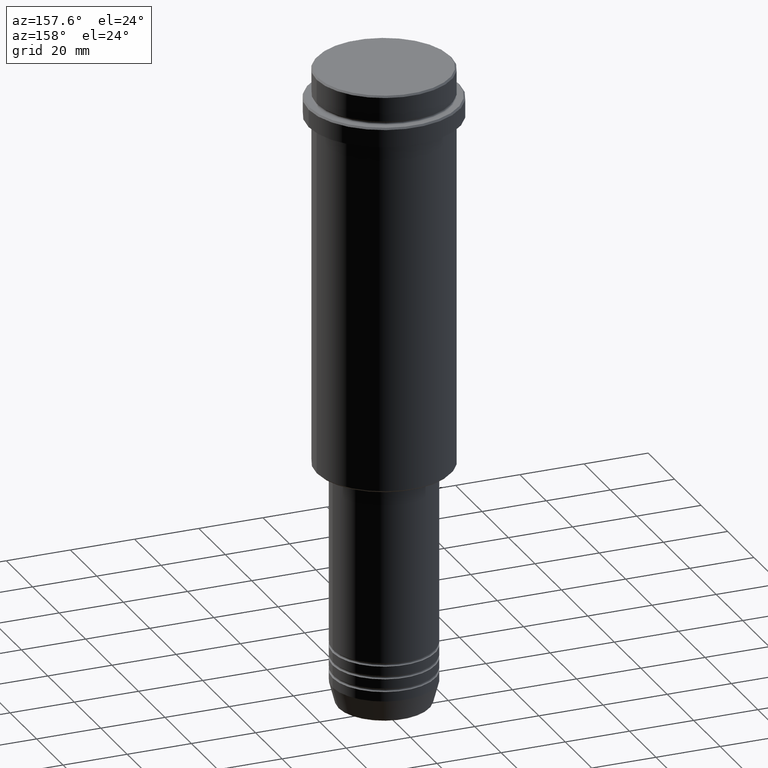
[diagram: clean part render]
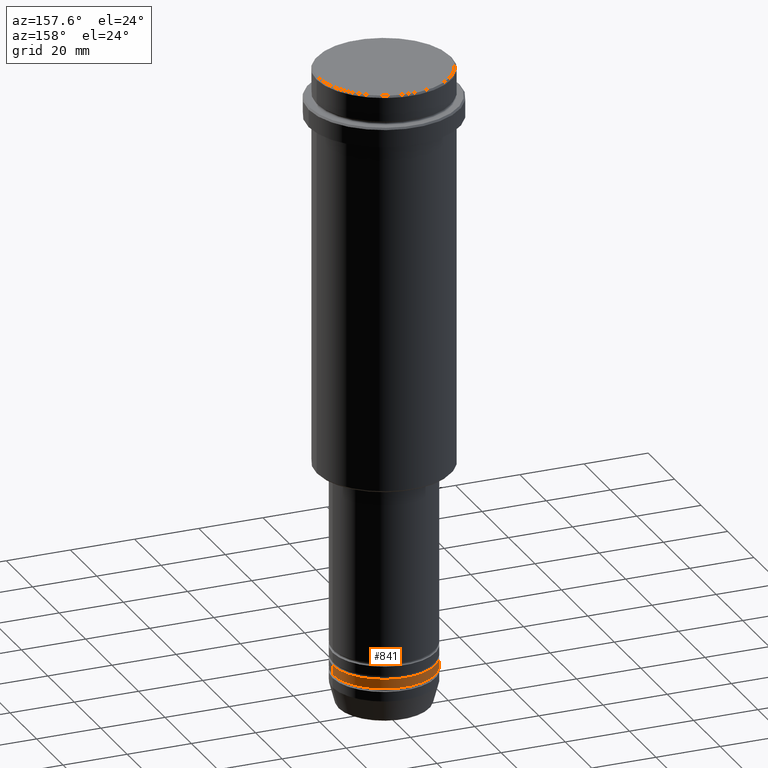
[diagram: same view with one face highlighted and labeled with its STEP entity id]
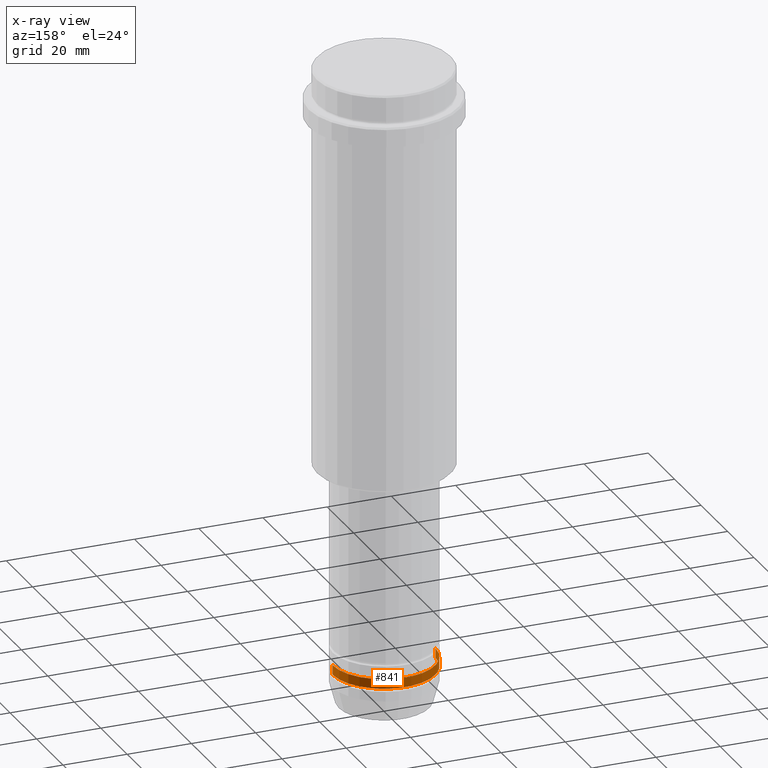
[diagram: x-ray of the same camera — body ghosted, the highlighted face saturated]
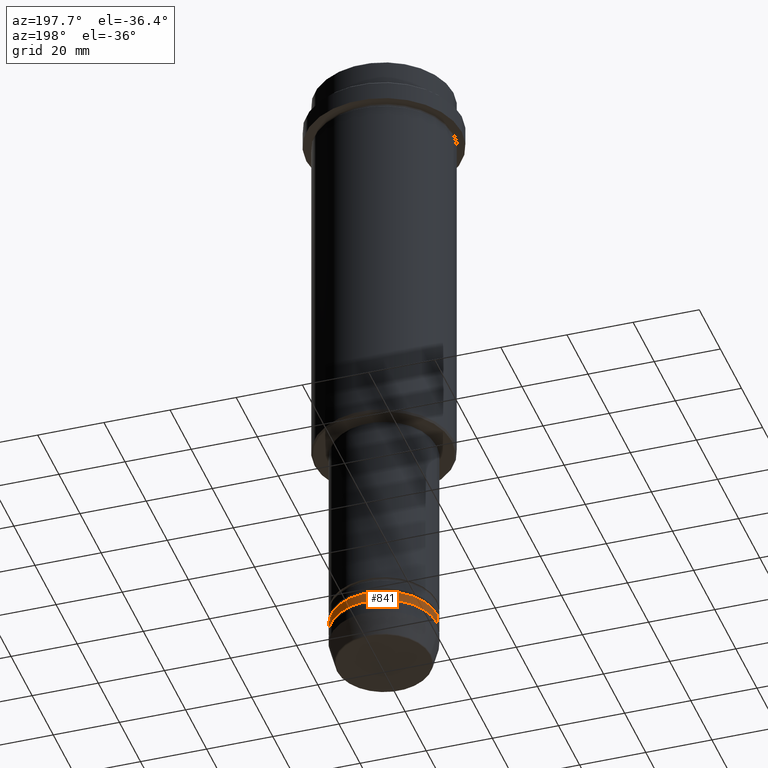
[diagram: same view with one face highlighted and labeled with its STEP entity id]
A machine part, auxiliary view. The second image highlights one B-rep face of the part: STEP entity #841.
The next image is the same camera in x-ray: the body ghosted, the highlighted face saturated — about 0% of this face is hidden behind the body in this view.
A second angle (auxiliary view) of the same face is appended — the face is thin or edge-on in the first view.
In plain terms, the highlighted cylindrical surface (partial cylindrical patch) has radius 16 mm, axis along (-0, -0, 1).
Its self-contained STEP definition (entity closure, byte-faithful):
#38 = CARTESIAN_POINT ( 'NONE',  ( 16.00000000000000000, 0.000000000000000000, -188.9999999999998863 ) ) ;
#42 = ORIENTED_EDGE ( 'NONE', *, *, #716, .T. ) ;
#82 = CARTESIAN_POINT ( 'NONE',  ( -16.00000000000000000, 1.959434878635765131E-15, -185.9999999999998863 ) ) ;
#101 = VERTEX_POINT ( 'NONE', #38 ) ;
#166 = VECTOR ( 'NONE', #330, 1000.000000000000000 ) ;
#185 = AXIS2_PLACEMENT_3D ( 'NONE', #478, #355, #1037 ) ;
#237 = CARTESIAN_POINT ( 'NONE',  ( 16.00000000000000000, 0.000000000000000000, 0.000000000000000000 ) ) ;
#290 = EDGE_CURVE ( 'NONE', #101, #869, #891, .T. ) ;
#330 = DIRECTION ( 'NONE',  ( -0.000000000000000000, -0.000000000000000000, 1.000000000000000000 ) ) ;
#353 = EDGE_LOOP ( 'NONE', ( #643, #42, #1311, #1082 ) ) ;
#355 = DIRECTION ( 'NONE',  ( -0.000000000000000000, -0.000000000000000000, 1.000000000000000000 ) ) ;
#372 = CARTESIAN_POINT ( 'NONE',  ( -16.00000000000000000, 1.959434878635765131E-15, 0.000000000000000000 ) ) ;
#478 = CARTESIAN_POINT ( 'NONE',  ( 0.000000000000000000, 0.000000000000000000, -188.9999999999998863 ) ) ;
#555 = EDGE_CURVE ( 'NONE', #1227, #726, #1156, .T. ) ;
#592 = DIRECTION ( 'NONE',  ( -0.000000000000000000, -0.000000000000000000, 1.000000000000000000 ) ) ;
#622 = CARTESIAN_POINT ( 'NONE',  ( 0.000000000000000000, 0.000000000000000000, 0.000000000000000000 ) ) ;
#643 = ORIENTED_EDGE ( 'NONE', *, *, #290, .T. ) ;
#716 = EDGE_CURVE ( 'NONE', #869, #726, #1387, .T. ) ;
#726 = VERTEX_POINT ( 'NONE', #82 ) ;
#756 = DIRECTION ( 'NONE',  ( 1.000000000000000000, 0.000000000000000000, 0.000000000000000000 ) ) ;
#835 = CARTESIAN_POINT ( 'NONE',  ( 16.00000000000000000, 0.000000000000000000, -185.9999999999998863 ) ) ;
#841 = ADVANCED_FACE ( 'NONE', ( #989 ), #1415, .T. ) ;
#867 = DIRECTION ( 'NONE',  ( -0.000000000000000000, -0.000000000000000000, 1.000000000000000000 ) ) ;
#869 = VERTEX_POINT ( 'NONE', #1030 ) ;
#891 = CIRCLE ( 'NONE', #185, 16.00000000000000000 ) ;
#973 = CARTESIAN_POINT ( 'NONE',  ( 0.000000000000000000, 0.000000000000000000, -185.9999999999998863 ) ) ;
#983 = LINE ( 'NONE', #237, #166 ) ;
#989 = FACE_OUTER_BOUND ( 'NONE', #353, .T. ) ;
#990 = AXIS2_PLACEMENT_3D ( 'NONE', #622, #867, #1312 ) ;
#1030 = CARTESIAN_POINT ( 'NONE',  ( -16.00000000000000000, 1.959434878635765131E-15, -188.9999999999998863 ) ) ;
#1037 = DIRECTION ( 'NONE',  ( 1.000000000000000000, 0.000000000000000000, 0.000000000000000000 ) ) ;
#1082 = ORIENTED_EDGE ( 'NONE', *, *, #1123, .F. ) ;
#1123 = EDGE_CURVE ( 'NONE', #101, #1227, #983, .T. ) ;
#1156 = CIRCLE ( 'NONE', #1273, 16.00000000000000000 ) ;
#1227 = VERTEX_POINT ( 'NONE', #835 ) ;
#1273 = AXIS2_PLACEMENT_3D ( 'NONE', #973, #1307, #756 ) ;
#1298 = VECTOR ( 'NONE', #592, 1000.000000000000000 ) ;
#1307 = DIRECTION ( 'NONE',  ( -0.000000000000000000, -0.000000000000000000, 1.000000000000000000 ) ) ;
#1311 = ORIENTED_EDGE ( 'NONE', *, *, #555, .F. ) ;
#1312 = DIRECTION ( 'NONE',  ( 1.000000000000000000, 0.000000000000000000, 0.000000000000000000 ) ) ;
#1387 = LINE ( 'NONE', #372, #1298 ) ;
#1415 = CYLINDRICAL_SURFACE ( 'NONE', #990, 16.00000000000000000 ) ;